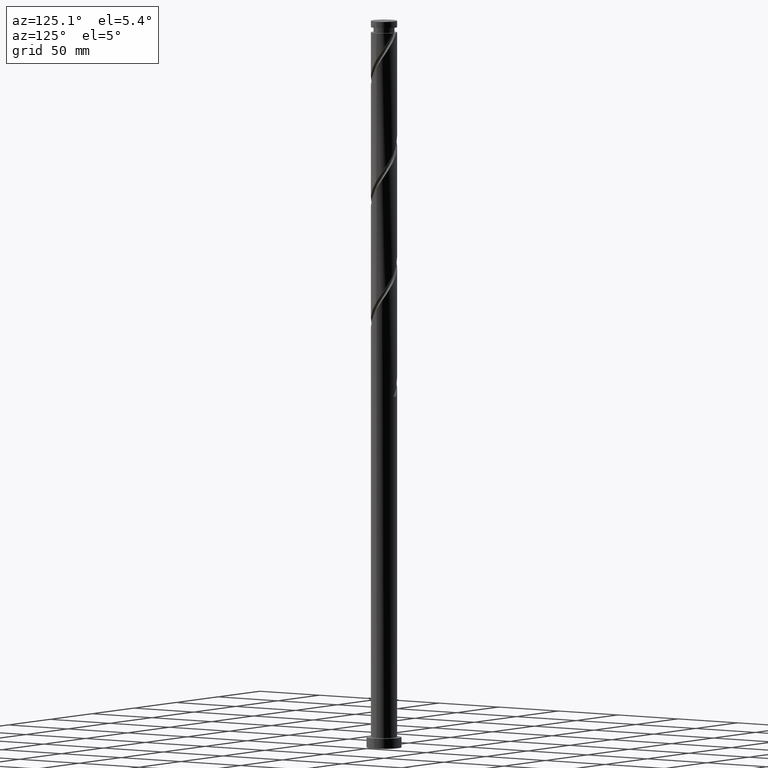
[diagram: clean part render]
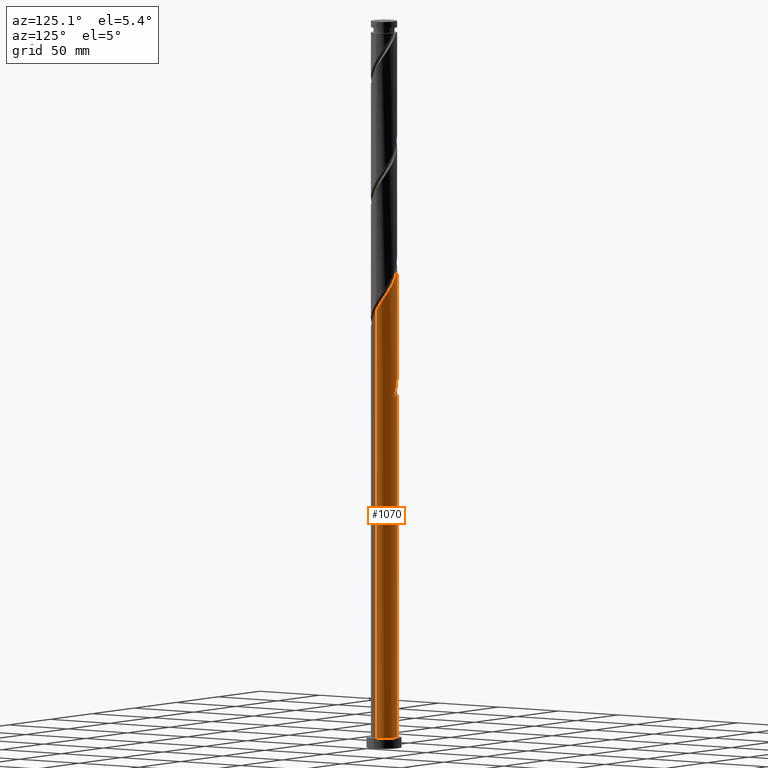
[diagram: same view with one face highlighted and labeled with its STEP entity id]
A machine part, auxiliary view. The second image highlights one B-rep face of the part: STEP entity #1070.
In plain terms, the highlighted cylindrical surface (edge-blend (fillet) strip) has radius 9 mm, axis along (-0, -0, -1).
Its self-contained STEP definition (entity closure, byte-faithful):
#6 =( BOUNDED_CURVE ( )  B_SPLINE_CURVE ( 2, ( #1362, #1521, #197, #1668, #1990, #1486, #2016, #526, #1202, #1655, #230, #1818, #878, #1851, #1509, #1179, #538, #1497, #361, #1211, #395, #1046, #1352, #1689, #1860, #1024, #84, #240, #1012, #38, #2004, #888, #207, #1532, #685 ),
 .UNSPECIFIED., .F., .T. ) 
 B_SPLINE_CURVE_WITH_KNOTS ( ( 3, 2, 2, 2, 2, 2, 2, 2, 2, 2, 2, 2, 2, 2, 2, 2, 2, 3 ),
 ( 0.1795286902180874000, 0.1796875000000000000, 0.1875000000000000000, 0.1953125000000000000, 0.2031250000000000000, 0.2109375000000000000, 0.2187500000000000000, 0.2265625000000000000, 0.2343750000000000000, 0.2421875000000000000, 0.2500000000000000000, 0.2578125000000000000, 0.2656250000000000000, 0.2734375000000000000, 0.2812500000000000000, 0.2890625000000000000, 0.2968750000000000000, 0.3045286902180872612 ),
 .UNSPECIFIED. ) 
 CURVE ( )  GEOMETRIC_REPRESENTATION_ITEM ( )  RATIONAL_B_SPLINE_CURVE ( ( 0.9089165573359391237, 0.9090019243628437717, 0.9090909090909354839, 0.9047133878838415910, 0.9090909090909354839, 0.9047133878838415910, 0.9090909090909354839, 0.9047133878838415910, 0.9090909090909354839, 0.9047133878838415910, 0.9090909090909354839, 0.9047133878838415910, 0.9090909090909354839, 0.9047133878838415910, 0.9090909090909354839, 0.9047133878838415910, 0.9090909090909354839, 0.9047133878838415910, 0.9090909090909354839, 0.9047133878838415910, 0.9090909090909354839, 0.9047133878838415910, 0.9090909090909354839, 0.9047133878838415910, 0.9090909090909354839, 0.9047133878838415910, 0.9090909090909354839, 0.9047133878838415910, 0.9090909090909354839, 0.9047133878838415910, 0.9090909090909354839, 0.9047133878838415910, 0.9090909090909354839, 0.9048023726119333032, 0.9089165573359390127 ) ) 
 REPRESENTATION_ITEM ( '' )  );
#8 = CARTESIAN_POINT ( 'NONE',  ( -9.000000000000000000, -6.754519710471182682E-15, 265.5551756571105102 ) ) ;
#38 = CARTESIAN_POINT ( 'NONE',  ( -7.992622888744461029, 4.231279290908926960, 337.1170620124470361 ) ) ;
#39 = DIRECTION ( 'NONE',  ( -0.000000000000000000, -0.000000000000000000, -1.000000000000000000 ) ) ;
#49 = CARTESIAN_POINT ( 'NONE',  ( -5.764980215651893225, 6.967836693874138732, 248.5753953457803220 ) ) ;
#61 = CARTESIAN_POINT ( 'NONE',  ( -3.477260898682817736, 8.301123818043667058, 244.6691453457802368 ) ) ;
#84 = CARTESIAN_POINT ( 'NONE',  ( -6.389272728671405943, 6.338548256395632130, 333.2108120124469792 ) ) ;
#146 = CARTESIAN_POINT ( 'NONE',  ( -8.643604123793917182, 2.659671564402113386, 261.5962286791136648 ) ) ;
#156 = CARTESIAN_POINT ( 'NONE',  ( -8.820000000000000284, 1.790977386791923864, 262.8983120124469792 ) ) ;
#178 = DIRECTION ( 'NONE',  ( -0.000000000000000000, -0.000000000000000000, -1.000000000000000000 ) ) ;
#193 = ORIENTED_EDGE ( 'NONE', *, *, #779, .T. ) ;
#197 = CARTESIAN_POINT ( 'NONE',  ( 8.999928528269348860, 0.03586761831830513614, 301.9608120124469792 ) ) ;
#203 = ORIENTED_EDGE ( 'NONE', *, *, #714, .T. ) ;
#207 = CARTESIAN_POINT ( 'NONE',  ( -8.833994850415354705, 1.720620522612488434, 341.0233120124469792 ) ) ;
#220 = CARTESIAN_POINT ( 'NONE',  ( -8.328575704621288267, 3.410986181794392280, 255.0858120124470076 ) ) ;
#227 = VERTEX_POINT ( 'NONE', #1030 ) ;
#230 = CARTESIAN_POINT ( 'NONE',  ( 6.338548256395635683, 6.389272728671402390, 312.3774786791136080 ) ) ;
#240 = CARTESIAN_POINT ( 'NONE',  ( -7.013565241690921326, 5.709259818917126417, 334.5128953457803505 ) ) ;
#252 = CARTESIAN_POINT ( 'NONE',  ( 9.000000000000015987, 1.262931168823190377E-14, 301.9081150344501339 ) ) ;
#258 = VERTEX_POINT ( 'NONE', #1959 ) ;
#314 = CARTESIAN_POINT ( 'NONE',  ( -3.410986181794384287, 8.328575704621275833, 249.8774786791135512 ) ) ;
#332 = CARTESIAN_POINT ( 'NONE',  ( -9.000000000000000000, 0.01793388036834467694, 265.5288221025932103 ) ) ;
#352 = DIRECTION ( 'NONE',  ( -1.000000000000000000, 0.000000000000000000, 0.000000000000000000 ) ) ;
#361 = CARTESIAN_POINT ( 'NONE',  ( -0.03586761831830471980, 8.999928528269348860, 322.7941453457802368 ) ) ;
#363 = DIRECTION ( 'NONE',  ( 0.000000000000000000, 0.000000000000000000, 1.000000000000000000 ) ) ;
#375 = CARTESIAN_POINT ( 'NONE',  ( -1.790977386791922532, 8.820000000000012719, 242.0649786791135796 ) ) ;
#385 = CARTESIAN_POINT ( 'NONE',  ( -8.833994850415354705, 1.720620522612488434, 257.6899786791136080 ) ) ;
#389 = CARTESIAN_POINT ( 'NONE',  ( -9.000000000000017764, 9.345243330105487039E-15, 260.2414483677833914 ) ) ;
#392 = VERTEX_POINT ( 'NONE', #389 ) ;
#395 = CARTESIAN_POINT ( 'NONE',  ( -1.790977386791922754, 8.820000000000012719, 325.3983120124469792 ) ) ;
#480 = AXIS2_PLACEMENT_3D ( 'NONE', #1308, #39, #352 ) ;
#493 = LINE ( 'NONE', #686, #993 ) ;
#519 = AXIS2_PLACEMENT_3D ( 'NONE', #1297, #363, #1169 ) ;
#522 = VERTEX_POINT ( 'NONE', #2084 ) ;
#526 = CARTESIAN_POINT ( 'NONE',  ( 7.958643512293401834, 4.294850232963517200, 308.4712286791137217 ) ) ;
#538 = CARTESIAN_POINT ( 'NONE',  ( 1.720620522612493319, 8.833994850415352929, 320.1899786791136648 ) ) ;
#544 = CARTESIAN_POINT ( 'NONE',  ( -9.000000000000001776, 0.000000000000000000, 500.0000000000000000 ) ) ;
#549 = CARTESIAN_POINT ( 'NONE',  ( -1.790977386791922532, 8.820000000000012719, 242.0649786791135796 ) ) ;
#585 = VERTEX_POINT ( 'NONE', #1937 ) ;
#608 = ORIENTED_EDGE ( 'NONE', *, *, #905, .T. ) ;
#635 = CARTESIAN_POINT ( 'NONE',  ( -5.709259818917118423, 7.013565241690909779, 253.7837286791136364 ) ) ;
#645 = CARTESIAN_POINT ( 'NONE',  ( -7.958643512293389399, 4.294850232963514536, 258.9920620124470361 ) ) ;
#655 = CARTESIAN_POINT ( 'NONE',  ( -8.999928528269329320, 0.03586761831831083297, 265.5024786791136080 ) ) ;
#685 = CARTESIAN_POINT ( 'NONE',  ( -9.000000000000017764, 9.345243330105487039E-15, 343.5747817011167058 ) ) ;
#686 = CARTESIAN_POINT ( 'NONE',  ( 9.000000000000001776, 1.102182119232617911E-15, 500.0000000000000000 ) ) ;
#697 = CARTESIAN_POINT ( 'NONE',  ( -7.992622888744461029, 4.231279290908926960, 253.7837286791135796 ) ) ;
#714 = EDGE_CURVE ( 'NONE', #2095, #585, #493, .T. ) ;
#721 = CARTESIAN_POINT ( 'NONE',  ( 0.9222832091817348976, 8.996395876206085163, 243.3670620124469792 ) ) ;
#733 = CARTESIAN_POINT ( 'NONE',  ( -0.8505479725451141615, 9.003461180332582359, 245.9712286791136933 ) ) ;
#779 = EDGE_CURVE ( 'NONE', #585, #227, #1804, .T. ) ;
#794 = CIRCLE ( 'NONE', #1259, 9.000000000000001776 ) ;
#825 = CYLINDRICAL_SURFACE ( 'NONE', #480, 9.000000000000001776 ) ;
#834 = DIRECTION ( 'NONE',  ( 0.000000000000000000, -0.000000000000000000, -1.000000000000000000 ) ) ;
#844 = CARTESIAN_POINT ( 'NONE',  ( -1.720620522612483771, 8.833994850415340494, 247.2733120124468940 ) ) ;
#854 = CARTESIAN_POINT ( 'NONE',  ( -5.029915224307705657, 7.463240103083769839, 247.2733120124469508 ) ) ;
#859 =( BOUNDED_CURVE ( )  B_SPLINE_CURVE ( 2, ( #549, #1326, #61, #1979, #854, #49, #1190, #1840, #1338, #697, #220, #867, #385, #1036, #1678 ),
 .UNSPECIFIED., .F., .T. ) 
 B_SPLINE_CURVE_WITH_KNOTS ( ( 3, 2, 2, 2, 2, 2, 2, 3 ),
 ( 0.000000000000000000, 0.007812500000000000000, 0.01562500000000000000, 0.02343749999999999653, 0.03125000000000000000, 0.03906250000000000000, 0.04687499999999999306, 0.05452869021808708083 ),
 .UNSPECIFIED. ) 
 CURVE ( )  GEOMETRIC_REPRESENTATION_ITEM ( )  RATIONAL_B_SPLINE_CURVE ( ( 0.9090909090909354839, 0.9047133878838415910, 0.9090909090909354839, 0.9047133878838415910, 0.9090909090909354839, 0.9047133878838415910, 0.9090909090909354839, 0.9047133878838415910, 0.9090909090909354839, 0.9047133878838415910, 0.9090909090909354839, 0.9047133878838415910, 0.9090909090909354839, 0.9048023726119334142, 0.9089165573359389017 ) ) 
 REPRESENTATION_ITEM ( '' )  );
#862 = LINE ( 'NONE', #544, #1363 ) ;
#863 = ORIENTED_EDGE ( 'NONE', *, *, #1648, .F. ) ;
#867 = CARTESIAN_POINT ( 'NONE',  ( -8.664528520498114617, 2.590693072679859377, 256.3878953457804073 ) ) ;
#878 = CARTESIAN_POINT ( 'NONE',  ( 4.970269554913029353, 7.503094065217689845, 314.9816453457803505 ) ) ;
#888 = CARTESIAN_POINT ( 'NONE',  ( -8.664528520498114617, 2.590693072679859377, 339.7212286791137785 ) ) ;
#905 = EDGE_CURVE ( 'NONE', #906, #522, #794, .T. ) ;
#906 = VERTEX_POINT ( 'NONE', #375 ) ;
#993 = VECTOR ( 'NONE', #178, 1000.000000000000000 ) ;
#1012 = CARTESIAN_POINT ( 'NONE',  ( -7.503094065217693398, 4.970269554913027577, 335.8149786791136080 ) ) ;
#1013 = DIRECTION ( 'NONE',  ( -0.000000000000000000, -0.000000000000000000, -1.000000000000000000 ) ) ;
#1024 = CARTESIAN_POINT ( 'NONE',  ( -5.764980215651893225, 6.967836693874138732, 331.9087286791135512 ) ) ;
#1030 = CARTESIAN_POINT ( 'NONE',  ( -9.000000000000001776, 0.000000000000000000, 7.000000000000000000 ) ) ;
#1036 = CARTESIAN_POINT ( 'NONE',  ( -9.000000000000010658, 0.8683183343608482652, 258.9654682623674944 ) ) ;
#1046 = CARTESIAN_POINT ( 'NONE',  ( -2.659671564402114274, 8.643604123793931393, 326.7003953457804073 ) ) ;
#1062 = ORIENTED_EDGE ( 'NONE', *, *, #1614, .F. ) ;
#1070 = ADVANCED_FACE ( 'NONE', ( #1948 ), #825, .T. ) ;
#1169 = DIRECTION ( 'NONE',  ( 1.000000000000000000, 0.000000000000000000, 0.000000000000000000 ) ) ;
#1179 = CARTESIAN_POINT ( 'NONE',  ( 2.590693072679860265, 8.664528520498112840, 318.8878953457802936 ) ) ;
#1190 = CARTESIAN_POINT ( 'NONE',  ( -6.389272728671405943, 6.338548256395632130, 249.8774786791136080 ) ) ;
#1202 = CARTESIAN_POINT ( 'NONE',  ( 7.463240103083767174, 5.029915224307708321, 309.7733120124469224 ) ) ;
#1211 = CARTESIAN_POINT ( 'NONE',  ( -0.9222832091817357858, 8.996395876206099373, 324.0962286791136648 ) ) ;
#1253 = CARTESIAN_POINT ( 'NONE',  ( -9.000000000000000000, -6.754519710471182682E-15, 265.5551756571105102 ) ) ;
#1259 = AXIS2_PLACEMENT_3D ( 'NONE', #1626, #834, #1669 ) ;
#1262 = VECTOR ( 'NONE', #1013, 1000.000000000000000 ) ;
#1296 = CARTESIAN_POINT ( 'NONE',  ( -8.301123818043652847, 3.477260898682812851, 260.2941453457802936 ) ) ;
#1297 = CARTESIAN_POINT ( 'NONE',  ( 0.000000000000000000, 0.000000000000000000, 7.000000000000000000 ) ) ;
#1299 =( BOUNDED_CURVE ( )  B_SPLINE_CURVE ( 2, ( #8, #332, #655, #1597, #156, #146, #1296, #645, #1796, #1438, #2092, #635, #1927, #1766, #314, #1372, #844, #733, #1828, #721, #2024 ),
 .UNSPECIFIED., .F., .T. ) 
 B_SPLINE_CURVE_WITH_KNOTS ( ( 3, 2, 2, 2, 2, 2, 2, 2, 2, 2, 3 ),
 ( 0.9295286902180871502, 0.9296875000000000000, 0.9375000000000000000, 0.9453125000000000000, 0.9531250000000000000, 0.9609375000000000000, 0.9687500000000000000, 0.9765625000000000000, 0.9843750000000000000, 0.9921875000000000000, 1.000000000000000000 ),
 .UNSPECIFIED. ) 
 CURVE ( )  GEOMETRIC_REPRESENTATION_ITEM ( )  RATIONAL_B_SPLINE_CURVE ( ( 0.9089165573359327954, 0.9090019243628376655, 0.9090909090909294887, 0.9047133878838355958, 0.9090909090909294887, 0.9047133878838355958, 0.9090909090909294887, 0.9047133878838355958, 0.9090909090909294887, 0.9047133878838355958, 0.9090909090909294887, 0.9047133878838355958, 0.9090909090909294887, 0.9047133878838355958, 0.9090909090909294887, 0.9047133878838355958, 0.9090909090909294887, 0.9047133878838355958, 0.9090909090909294887, 0.9047133878838355958, 0.9090909090909294887 ) ) 
 REPRESENTATION_ITEM ( '' )  );
#1308 = CARTESIAN_POINT ( 'NONE',  ( 0.000000000000000000, 0.000000000000000000, 500.0000000000000000 ) ) ;
#1326 = CARTESIAN_POINT ( 'NONE',  ( -2.659671564402114274, 8.643604123793931393, 243.3670620124469792 ) ) ;
#1338 = CARTESIAN_POINT ( 'NONE',  ( -7.503094065217693398, 4.970269554913027577, 252.4816453457802368 ) ) ;
#1348 = EDGE_LOOP ( 'NONE', ( #1062, #203, #193, #1921, #863, #608, #1857, #2040 ) ) ;
#1352 = CARTESIAN_POINT ( 'NONE',  ( -3.477260898682817736, 8.301123818043667058, 328.0024786791136648 ) ) ;
#1359 = DIRECTION ( 'NONE',  ( -0.000000000000000000, -0.000000000000000000, -1.000000000000000000 ) ) ;
#1362 = CARTESIAN_POINT ( 'NONE',  ( 9.000000000000015987, 1.262931168823190377E-14, 301.9081150344500770 ) ) ;
#1363 = VECTOR ( 'NONE', #1359, 1000.000000000000000 ) ;
#1372 = CARTESIAN_POINT ( 'NONE',  ( -2.590693072679852715, 8.664528520498102182, 248.5753953457802652 ) ) ;
#1438 = CARTESIAN_POINT ( 'NONE',  ( -6.967836693874127185, 5.764980215651887008, 256.3878953457803505 ) ) ;
#1486 = CARTESIAN_POINT ( 'NONE',  ( 8.643604123793931393, 2.659671564402110722, 305.8670620124470361 ) ) ;
#1497 = CARTESIAN_POINT ( 'NONE',  ( 0.8505479725451177142, 9.003461180332596570, 321.4920620124470929 ) ) ;
#1498 = LINE ( 'NONE', #1991, #1262 ) ;
#1509 = CARTESIAN_POINT ( 'NONE',  ( 3.410986181794391836, 8.328575704621288267, 317.5858120124469224 ) ) ;
#1521 = CARTESIAN_POINT ( 'NONE',  ( 9.000000000000017764, 0.01793388036836720059, 301.9344685889674338 ) ) ;
#1532 = CARTESIAN_POINT ( 'NONE',  ( -9.000000000000015987, 0.8683183343608281701, 342.2988015957007519 ) ) ;
#1566 = EDGE_CURVE ( 'NONE', #1930, #522, #1299, .T. ) ;
#1597 = CARTESIAN_POINT ( 'NONE',  ( -8.996395876206085163, 0.9222832091817345646, 264.2003953457802936 ) ) ;
#1614 = EDGE_CURVE ( 'NONE', #2095, #258, #6, .T. ) ;
#1626 = CARTESIAN_POINT ( 'NONE',  ( 0.000000000000000000, 0.000000000000000000, 242.0649786791135796 ) ) ;
#1648 = EDGE_CURVE ( 'NONE', #906, #392, #859, .T. ) ;
#1655 = CARTESIAN_POINT ( 'NONE',  ( 6.967836693874138732, 5.764980215651893225, 311.0753953457802936 ) ) ;
#1668 = CARTESIAN_POINT ( 'NONE',  ( 8.996395876206099373, 0.9222832091817362299, 303.2628953457802936 ) ) ;
#1669 = DIRECTION ( 'NONE',  ( -1.000000000000000000, 0.000000000000000000, 0.000000000000000000 ) ) ;
#1678 = CARTESIAN_POINT ( 'NONE',  ( -9.000000000000017764, 9.345243330105488616E-15, 260.2414483677833914 ) ) ;
#1689 = CARTESIAN_POINT ( 'NONE',  ( -4.294850232963518977, 7.958643512293401834, 329.3045620124470929 ) ) ;
#1766 = CARTESIAN_POINT ( 'NONE',  ( -4.231279290908919855, 7.992622888744453036, 251.1795620124469224 ) ) ;
#1782 = EDGE_CURVE ( 'NONE', #392, #227, #862, .T. ) ;
#1796 = CARTESIAN_POINT ( 'NONE',  ( -7.463240103083756516, 5.029915224307700328, 257.6899786791135512 ) ) ;
#1804 = CIRCLE ( 'NONE', #519, 9.000000000000001776 ) ;
#1818 = CARTESIAN_POINT ( 'NONE',  ( 5.709259818917125529, 7.013565241690921326, 313.6795620124469792 ) ) ;
#1828 = CARTESIAN_POINT ( 'NONE',  ( 0.03586761831831040276, 8.999928528269329320, 244.6691453457802652 ) ) ;
#1840 = CARTESIAN_POINT ( 'NONE',  ( -7.013565241690921326, 5.709259818917126417, 251.1795620124469508 ) ) ;
#1851 = CARTESIAN_POINT ( 'NONE',  ( 4.231279290908930513, 7.992622888744459253, 316.2837286791137217 ) ) ;
#1857 = ORIENTED_EDGE ( 'NONE', *, *, #1566, .F. ) ;
#1860 = CARTESIAN_POINT ( 'NONE',  ( -5.029915224307705657, 7.463240103083769839, 330.6066453457804073 ) ) ;
#1921 = ORIENTED_EDGE ( 'NONE', *, *, #1782, .F. ) ;
#1927 = CARTESIAN_POINT ( 'NONE',  ( -4.970269554913016918, 7.503094065217680075, 252.4816453457802083 ) ) ;
#1930 = VERTEX_POINT ( 'NONE', #1253 ) ;
#1937 = CARTESIAN_POINT ( 'NONE',  ( 9.000000000000001776, 1.102182119232617911E-15, 7.000000000000000000 ) ) ;
#1948 = FACE_OUTER_BOUND ( 'NONE', #1348, .T. ) ;
#1959 = CARTESIAN_POINT ( 'NONE',  ( -9.000000000000017764, 9.345243330105487039E-15, 343.5747817011167626 ) ) ;
#1979 = CARTESIAN_POINT ( 'NONE',  ( -4.294850232963518977, 7.958643512293401834, 245.9712286791136648 ) ) ;
#1990 = CARTESIAN_POINT ( 'NONE',  ( 8.820000000000012719, 1.790977386791923198, 304.5649786791136648 ) ) ;
#1991 = CARTESIAN_POINT ( 'NONE',  ( -9.000000000000001776, 0.000000000000000000, 500.0000000000000000 ) ) ;
#2004 = CARTESIAN_POINT ( 'NONE',  ( -8.328575704621288267, 3.410986181794392280, 338.4191453457802936 ) ) ;
#2016 = CARTESIAN_POINT ( 'NONE',  ( 8.301123818043667058, 3.477260898682817736, 307.1691453457803505 ) ) ;
#2024 = CARTESIAN_POINT ( 'NONE',  ( 1.790977386791925641, 8.820000000000000284, 242.0649786791135796 ) ) ;
#2040 = ORIENTED_EDGE ( 'NONE', *, *, #2099, .F. ) ;
#2084 = CARTESIAN_POINT ( 'NONE',  ( 1.790977386791925641, 8.820000000000000284, 242.0649786791135796 ) ) ;
#2092 = CARTESIAN_POINT ( 'NONE',  ( -6.338548256395620584, 6.389272728671397950, 255.0858120124469508 ) ) ;
#2095 = VERTEX_POINT ( 'NONE', #252 ) ;
#2099 = EDGE_CURVE ( 'NONE', #258, #1930, #1498, .T. ) ;